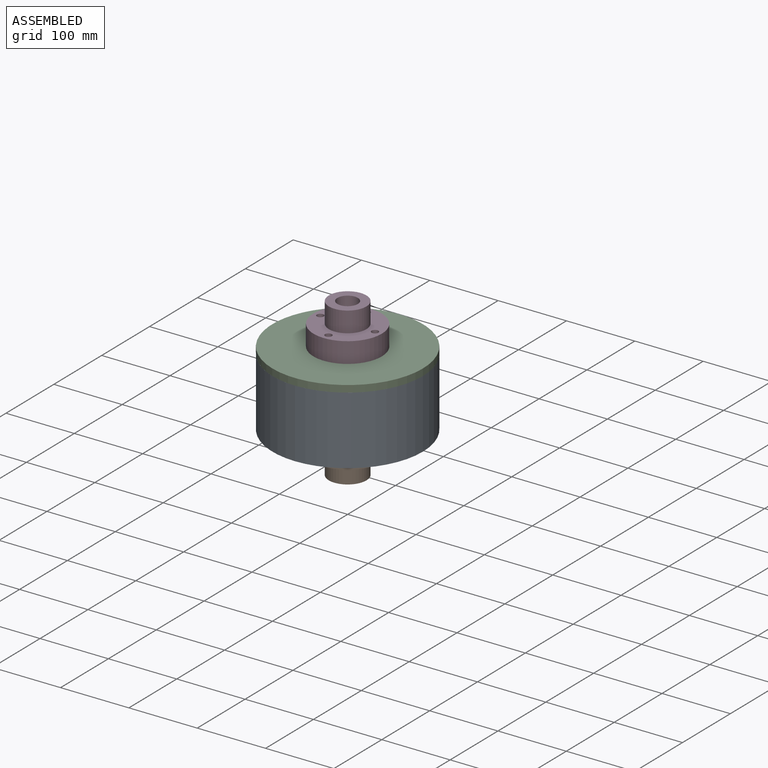
[diagram: assembled view]
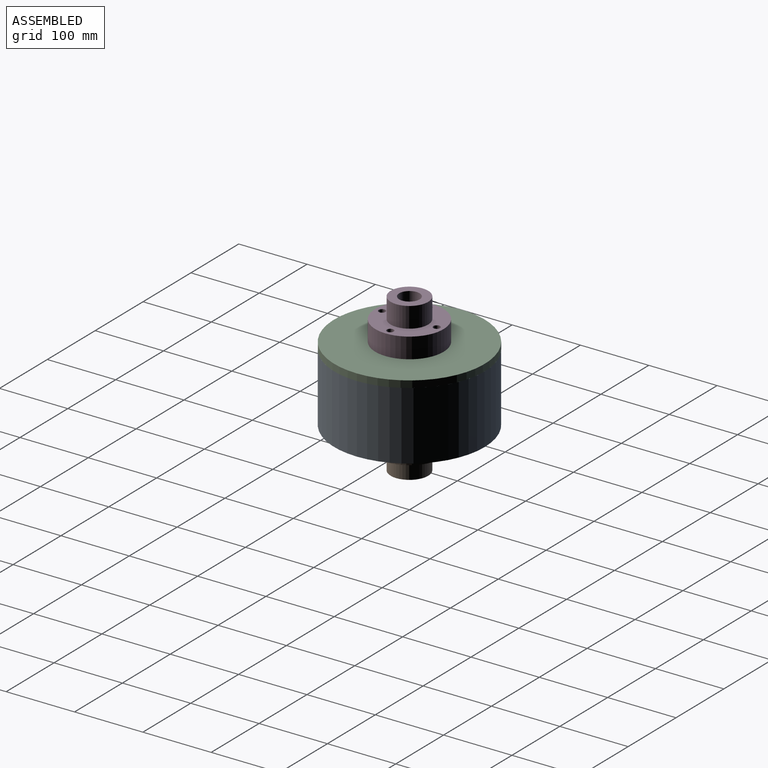
[diagram: assembled view, second angle]
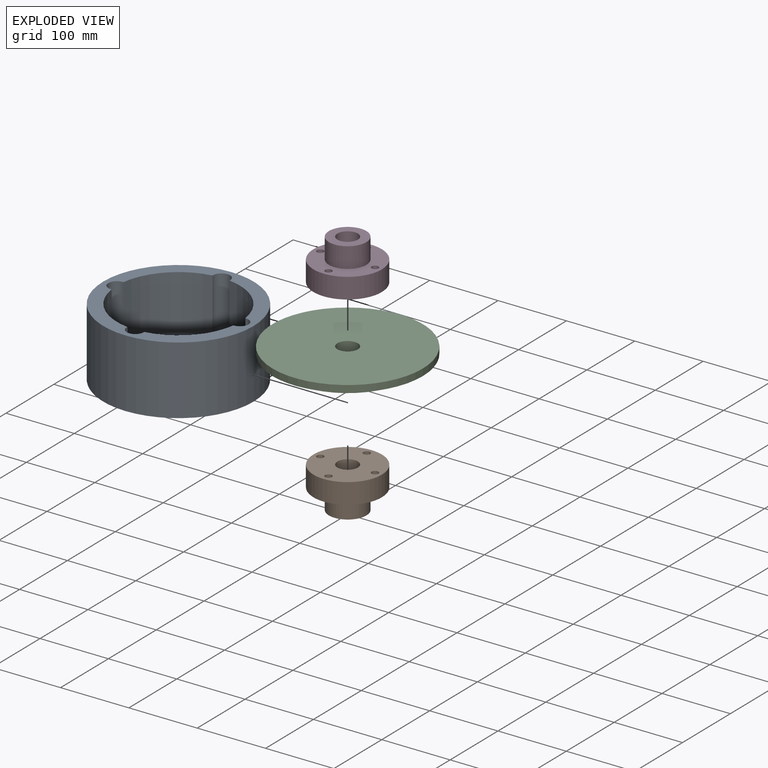
[diagram: exploded view]
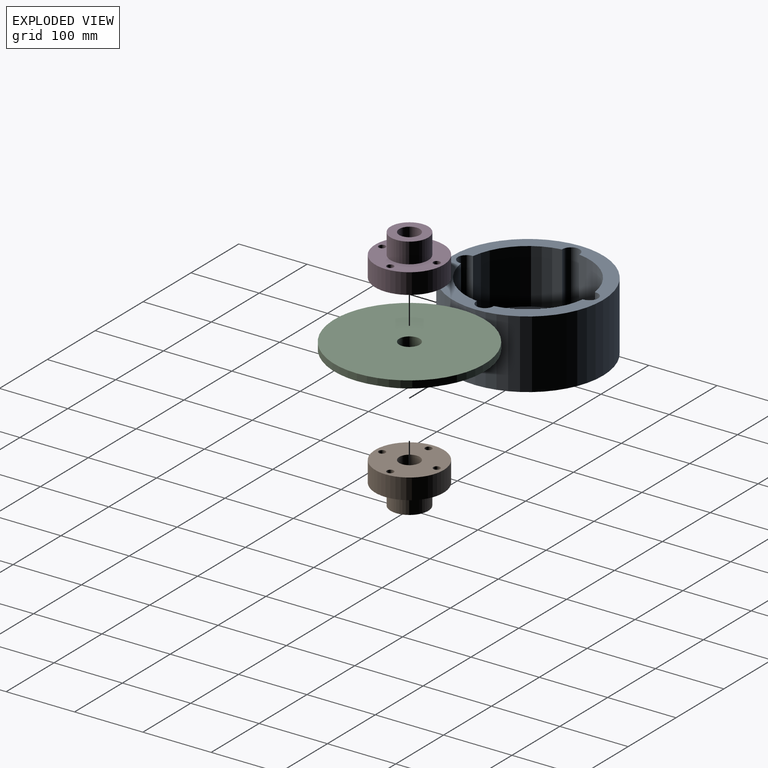
[diagram: exploded view, second angle]
ASSEMBLY  parts=4 mates=2
PART A: 13 faces, bbox 220x220x100 mm
  f0: cylinder r=90mm len=80mm, axis (0,0,1), area 9308.1mm2, adj f5,f7,f10,f11
  f1: cylinder r=90mm len=80mm, axis (0,0,1), area 9308.1mm2, adj f5,f7,f8,f11
  f2: cylinder r=90mm len=80mm, axis (0,0,1), area 9308.1mm2, adj f5,f7,f9,f10
  f3: cylinder r=90mm len=80mm, axis (0,0,1), area 9308.1mm2, adj f5,f7,f8,f9
  f4: cylinder r=110mm len=220mm, axis (0,0,-1), area 69115mm2, adj f5,f6
  f5: plane 220x220mm, normal (0,0,1), area 11555.7mm2, adj f0,f1,f2,f3,f4,f8,f9,f10
  f6: plane 220x220mm, normal (0,0,-1), area 35342.9mm2, adj f4,f8,f9,f10,f11,f12
  f7: plane 178.26x178.26mm, normal (0,0,1), area 23787.2mm2, adj f0,f1,f2,f3,f8,f9,f10,f11
  f8: cylinder r=12.5mm len=100mm, axis (0,0,-1), area 4851.4mm2, adj f1,f3,f5,f6,f7
  f9: cylinder r=12.5mm len=100mm, axis (0,0,-1), area 4851.4mm2, adj f2,f3,f5,f6,f7
  f10: cylinder r=12.5mm len=100mm, axis (0,0,-1), area 4851.4mm2, adj f0,f2,f5,f6,f7
  f11: cylinder r=12.5mm len=100mm, axis (0,0,-1), area 4851.4mm2, adj f0,f1,f5,f6,f7
  f12: cylinder r=15mm len=30mm, axis (0,0,-1), area 1885mm2, adj f6,f7
PART B: 10 faces, bbox 100x100x60 mm
  f0: cylinder r=50mm len=100mm, axis (0,0,-1), area 9424.8mm2, adj f1,f2
  f1: plane 100x100mm, normal (0,0,1), area 5169.7mm2, adj f0,f3,f6,f7,f8,f9
  f2: plane 100x100mm, normal (0,0,-1), area 6833mm2, adj f0,f5,f6,f7,f8,f9
  f3: cylinder r=27.47mm len=54.93mm, axis (0,0,-1), area 5177.4mm2, adj f1,f4
  f4: plane 54.93x54.93mm, normal (0,0,1), area 1663.3mm2, adj f3,f5
  f5: cylinder r=15mm len=60mm, axis (0,0,1), area 5654.9mm2, adj f2,f4
  f6: cylinder r=5mm len=30mm, axis (0,0,-1), area 942.5mm2, adj f1,f2
  f7: cylinder r=5mm len=30mm, axis (0,0,-1), area 942.5mm2, adj f1,f2
  f8: cylinder r=5mm len=30mm, axis (0,0,-1), area 942.5mm2, adj f1,f2
  f9: cylinder r=5mm len=30mm, axis (0,0,-1), area 942.5mm2, adj f1,f2
PART C: 6 faces, bbox 220x220x20 mm
  f0: cylinder r=110mm len=220mm, axis (0,0,-1), area 6911.5mm2, adj f1,f2
  f1: plane 220x220mm, normal (0,0,1), area 37306.4mm2, adj f0,f5
  f2: plane 220x220mm, normal (0,0,-1), area 12566.4mm2, adj f0,f3
  f3: cylinder r=90mm len=180mm, axis (0,0,1), area 5654.9mm2, adj f2,f4
  f4: plane 180x180mm, normal (0,0,-1), area 24740mm2, adj f3,f5
  f5: cylinder r=15mm len=30mm, axis (0,0,1), area 1885mm2, adj f1,f4
PART D: same geometry as B
PLACE A t=(0,0,30)mm
PLACE B rot(axis=(1,0,0),180deg) t=(0,0,-20)mm
PLACE C t=(0,0,80)mm
PLACE D t=(0,0,90)mm
MATE cylindrical A.f4 <-> B.f5  axis (0,0,-1) through (0,0,-20)mm
MATE cylindrical C.f5 <-> D.f5  axis (0,0,1) through (0,0,90)mm
